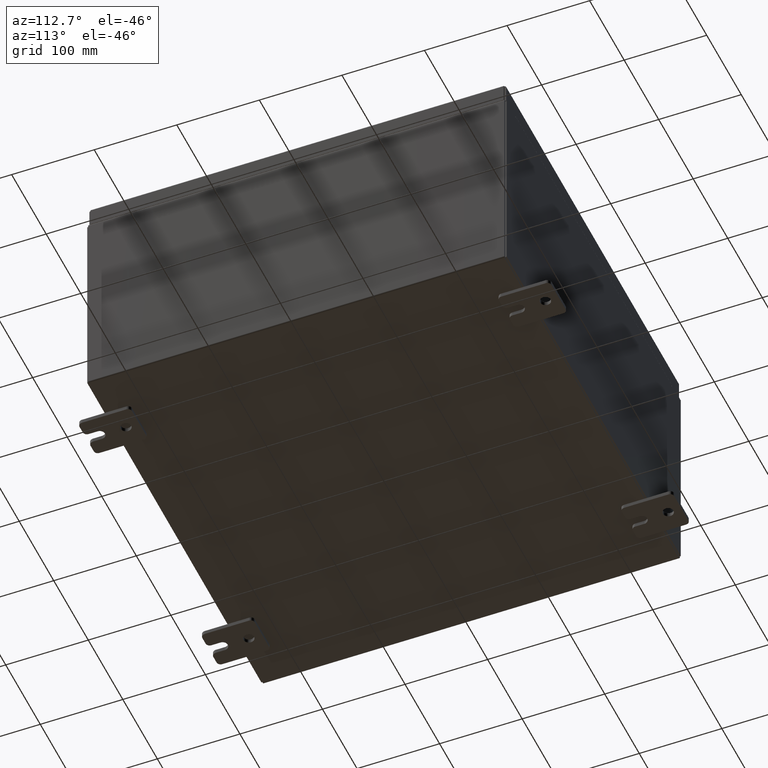
[diagram: clean part render]
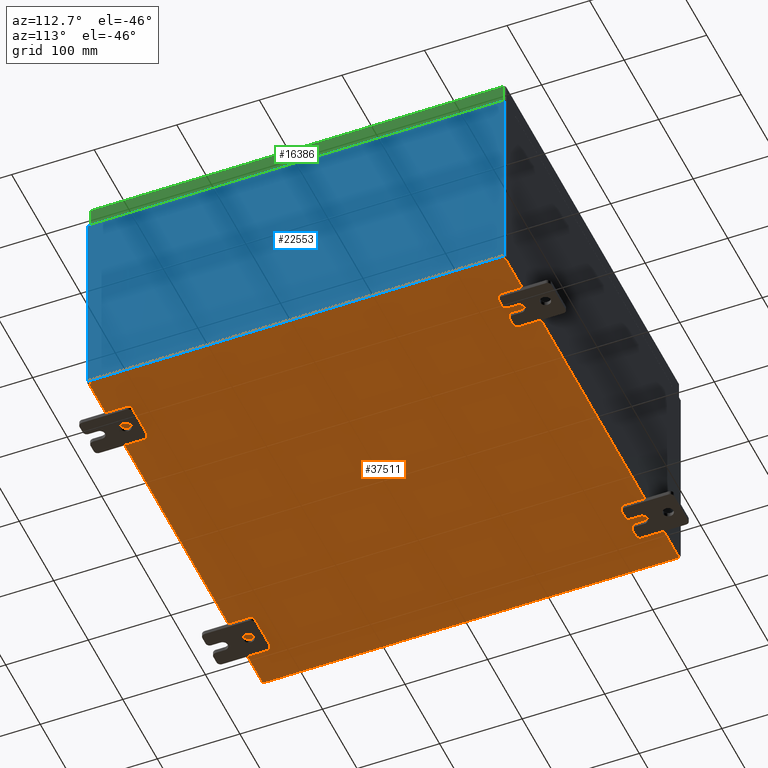
[diagram: same view with three faces highlighted in distinct colors, each labeled with its STEP entity id]
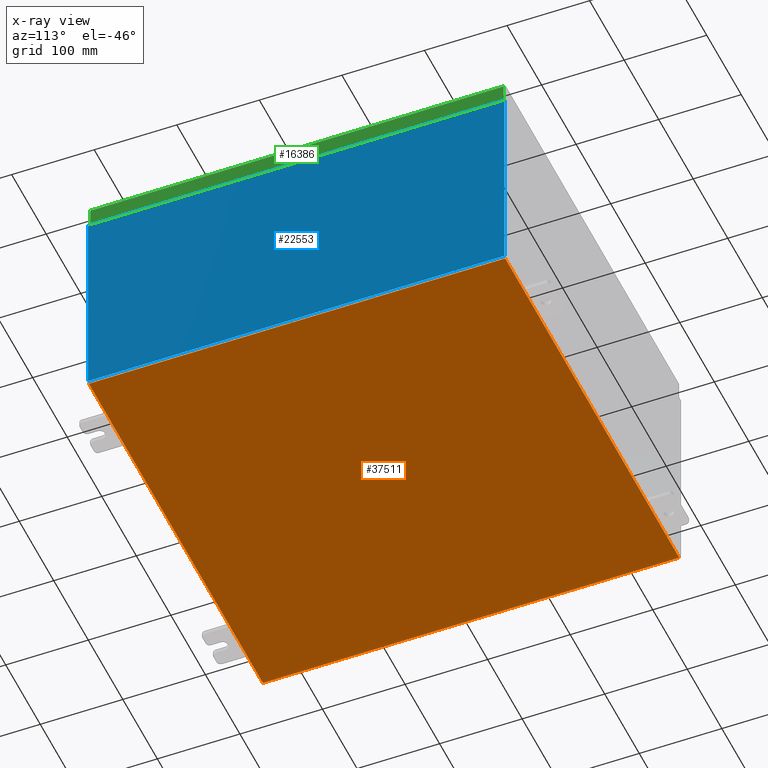
[diagram: x-ray of the same camera — body ghosted, the three highlighted faces saturated]
A machine part, auxiliary view with three faces highlighted in distinct colors.
The next image is the same camera in x-ray (body ghosted, the three faces saturated) — at least one of them is partly hidden behind the body in this view.
Their STEP definitions:

[orange] entity #37511 — the highlighted planar face has unit normal (0, 0, -1).
#795 = ORIENTED_EDGE ( 'NONE', *, *, #26957, .F. ) ;
#6529 = LINE ( 'NONE', #42956, #55595 ) ;
#7159 = ORIENTED_EDGE ( 'NONE', *, *, #29841, .T. ) ;
#9420 = CARTESIAN_POINT ( 'NONE',  ( -10.00000000000000000, -9.925299999999998200, -0.07470000000000000300 ) ) ;
#10804 = VERTEX_POINT ( 'NONE', #46163 ) ;
#12954 = LINE ( 'NONE', #47720, #25949 ) ;
#13771 = VECTOR ( 'NONE', #14333, 39.37007874015748100 ) ;
#14333 = DIRECTION ( 'NONE',  ( 1.000000000000000000, 0.0000000000000000000, 0.0000000000000000000 ) ) ;
#18795 = AXIS2_PLACEMENT_3D ( 'NONE', #41668, #56690, #27273 ) ;
#23276 = CARTESIAN_POINT ( 'NONE',  ( -10.00000000000000000, 9.925300000000001800, -0.07470000000000000300 ) ) ;
#25949 = VECTOR ( 'NONE', #27925, 39.37007874015748100 ) ;
#26957 = EDGE_CURVE ( 'NONE', #10804, #31960, #61350, .T. ) ;
#27273 = DIRECTION ( 'NONE',  ( -1.000000000000000000, 0.0000000000000000000, -0.0000000000000000000 ) ) ;
#27925 = DIRECTION ( 'NONE',  ( -0.0000000000000000000, -1.000000000000000000, -0.0000000000000000000 ) ) ;
#28202 = DIRECTION ( 'NONE',  ( -1.000000000000000000, -0.0000000000000000000, -0.0000000000000000000 ) ) ;
#28210 = ORIENTED_EDGE ( 'NONE', *, *, #35205, .T. ) ;
#29841 = EDGE_CURVE ( 'NONE', #40425, #31960, #12954, .T. ) ;
#31960 = VERTEX_POINT ( 'NONE', #61439 ) ;
#35205 = EDGE_CURVE ( 'NONE', #10804, #54665, #6529, .T. ) ;
#36255 = FACE_OUTER_BOUND ( 'NONE', #58512, .T. ) ;
#37511 = ADVANCED_FACE ( 'NONE', ( #36255 ), #51762, .T. ) ;
#37986 = DIRECTION ( 'NONE',  ( -0.0000000000000000000, 1.000000000000000000, -0.0000000000000000000 ) ) ;
#40425 = VERTEX_POINT ( 'NONE', #48073 ) ;
#41668 = CARTESIAN_POINT ( 'NONE',  ( 0.0000000000000000000, 0.0000000000000000000, -0.07470000000000000300 ) ) ;
#42329 = ORIENTED_EDGE ( 'NONE', *, *, #60268, .F. ) ;
#42956 = CARTESIAN_POINT ( 'NONE',  ( -9.912300000000000100, -9.925299999999998200, -0.07469999999999994700 ) ) ;
#46163 = CARTESIAN_POINT ( 'NONE',  ( -9.912300000000000100, -9.925299999999996500, -0.07469999999999994700 ) ) ;
#47720 = CARTESIAN_POINT ( 'NONE',  ( 9.912300000000000100, 9.925300000000001800, -0.07469999999999994700 ) ) ;
#48073 = CARTESIAN_POINT ( 'NONE',  ( 9.912300000000000100, 9.925299999999998200, -0.07469999999999994700 ) ) ;
#50902 = VECTOR ( 'NONE', #28202, 39.37007874015748100 ) ;
#51738 = CARTESIAN_POINT ( 'NONE',  ( -9.912300000000000100, 9.925300000000001800, -0.07470000000000000300 ) ) ;
#51762 = PLANE ( 'NONE',  #18795 ) ;
#52447 = LINE ( 'NONE', #23276, #50902 ) ;
#54665 = VERTEX_POINT ( 'NONE', #51738 ) ;
#55595 = VECTOR ( 'NONE', #37986, 39.37007874015748100 ) ;
#56690 = DIRECTION ( 'NONE',  ( 0.0000000000000000000, 0.0000000000000000000, -1.000000000000000000 ) ) ;
#58512 = EDGE_LOOP ( 'NONE', ( #795, #28210, #42329, #7159 ) ) ;
#60268 = EDGE_CURVE ( 'NONE', #40425, #54665, #52447, .T. ) ;
#61350 = LINE ( 'NONE', #9420, #13771 ) ;
#61439 = CARTESIAN_POINT ( 'NONE',  ( 9.912300000000000100, -9.925299999999998200, -0.07470000000000000300 ) ) ;

[blue] entity #22553 — the highlighted planar face has unit normal (-1, 0, 0).
#2869 = VERTEX_POINT ( 'NONE', #7932 ) ;
#3292 = VECTOR ( 'NONE', #28039, 39.37007874015748100 ) ;
#6965 = ORIENTED_EDGE ( 'NONE', *, *, #35541, .T. ) ;
#7932 = CARTESIAN_POINT ( 'NONE',  ( 10.00000000000000000, -9.925299999999998200, 0.01299999999999984300 ) ) ;
#8483 = VERTEX_POINT ( 'NONE', #22563 ) ;
#8607 = DIRECTION ( 'NONE',  ( -0.0000000000000000000, -1.000000000000000000, -0.0000000000000000000 ) ) ;
#11849 = LINE ( 'NONE', #20155, #36381 ) ;
#15572 = CARTESIAN_POINT ( 'NONE',  ( 10.00000000000000000, 0.0000000000000000000, -3.549164226462045900E-014 ) ) ;
#16187 = ORIENTED_EDGE ( 'NONE', *, *, #31739, .F. ) ;
#18971 = LINE ( 'NONE', #25829, #45078 ) ;
#19341 = ORIENTED_EDGE ( 'NONE', *, *, #38269, .T. ) ;
#20155 = CARTESIAN_POINT ( 'NONE',  ( 10.00000000000000000, 9.925300000000001800, -3.330616386968905300E-014 ) ) ;
#20884 = DIRECTION ( 'NONE',  ( -1.000000000000000000, 0.0000000000000000000, 3.523082860860887800E-015 ) ) ;
#21690 = CARTESIAN_POINT ( 'NONE',  ( 10.00000000000000000, 9.925299999999998200, 0.01299999999999984700 ) ) ;
#22553 = ADVANCED_FACE ( 'NONE', ( #24141 ), #45175, .F. ) ;
#22563 = CARTESIAN_POINT ( 'NONE',  ( 10.00000000000003600, 9.925299999999996500, 9.837599999999998300 ) ) ;
#24141 = FACE_OUTER_BOUND ( 'NONE', #54391, .T. ) ;
#24883 = DIRECTION ( 'NONE',  ( 3.523082860860888200E-015, -2.201926788038055100E-016, 1.000000000000000000 ) ) ;
#25829 = CARTESIAN_POINT ( 'NONE',  ( 10.00000000000000000, -9.925299999999998200, 0.01299999999999984700 ) ) ;
#26808 = VECTOR ( 'NONE', #8607, 39.37007874015748100 ) ;
#26840 = EDGE_CURVE ( 'NONE', #8483, #56255, #52945, .T. ) ;
#28039 = DIRECTION ( 'NONE',  ( -3.523082860860888200E-015, 0.0000000000000000000, -1.000000000000000000 ) ) ;
#31739 = EDGE_CURVE ( 'NONE', #36935, #2869, #18971, .T. ) ;
#35541 = EDGE_CURVE ( 'NONE', #36935, #8483, #11849, .T. ) ;
#36381 = VECTOR ( 'NONE', #24883, 39.37007874015748100 ) ;
#36935 = VERTEX_POINT ( 'NONE', #21690 ) ;
#38269 = EDGE_CURVE ( 'NONE', #56255, #2869, #53890, .T. ) ;
#39875 = ORIENTED_EDGE ( 'NONE', *, *, #26840, .T. ) ;
#42892 = CARTESIAN_POINT ( 'NONE',  ( 10.00000000000003600, 9.925299999999998200, 9.837599999999998300 ) ) ;
#45078 = VECTOR ( 'NONE', #60160, 39.37007874015748100 ) ;
#45175 = PLANE ( 'NONE',  #62592 ) ;
#51942 = CARTESIAN_POINT ( 'NONE',  ( 10.00000000000003600, -9.925299999999998200, 9.837599999999998300 ) ) ;
#52945 = LINE ( 'NONE', #42892, #26808 ) ;
#53890 = LINE ( 'NONE', #57462, #3292 ) ;
#54391 = EDGE_LOOP ( 'NONE', ( #39875, #19341, #16187, #6965 ) ) ;
#55243 = DIRECTION ( 'NONE',  ( 3.523082860860887800E-015, 0.0000000000000000000, 1.000000000000000000 ) ) ;
#56255 = VERTEX_POINT ( 'NONE', #51942 ) ;
#57462 = CARTESIAN_POINT ( 'NONE',  ( 10.00000000000000000, -9.925299999999998200, -3.549164226462045900E-014 ) ) ;
#60160 = DIRECTION ( 'NONE',  ( -0.0000000000000000000, -1.000000000000000000, -0.0000000000000000000 ) ) ;
#62592 = AXIS2_PLACEMENT_3D ( 'NONE', #15572, #20884, #55243 ) ;

[green] entity #16386 — the highlighted planar face has unit normal (1, 0, 0).
#1029 = VECTOR ( 'NONE', #43459, 39.37007874015748100 ) ;
#1765 = DIRECTION ( 'NONE',  ( 0.0000000000000000000, -1.000000000000000000, 0.0000000000000000000 ) ) ;
#3096 = EDGE_LOOP ( 'NONE', ( #21451, #13768, #10732, #51526 ) ) ;
#3791 = LINE ( 'NONE', #31058, #42916 ) ;
#8256 = VERTEX_POINT ( 'NONE', #15332 ) ;
#9775 = DIRECTION ( 'NONE',  ( 1.000000000000000000, 0.0000000000000000000, 2.532419924601866100E-015 ) ) ;
#10732 = ORIENTED_EDGE ( 'NONE', *, *, #31534, .T. ) ;
#13768 = ORIENTED_EDGE ( 'NONE', *, *, #27604, .F. ) ;
#15332 = CARTESIAN_POINT ( 'NONE',  ( 9.937499999999998200, 9.848657864376269400, -0.08770000000000008300 ) ) ;
#16386 = ADVANCED_FACE ( 'NONE', ( #45284 ), #39098, .T. ) ;
#18484 = EDGE_CURVE ( 'NONE', #43240, #22230, #28981, .T. ) ;
#18918 = DIRECTION ( 'NONE',  ( -2.532419924601866100E-015, -6.982962677686267500E-015, 1.000000000000000000 ) ) ;
#20445 = CARTESIAN_POINT ( 'NONE',  ( 9.937499999999998200, -9.848657864376271200, -0.08770000000000008300 ) ) ;
#21451 = ORIENTED_EDGE ( 'NONE', *, *, #18484, .F. ) ;
#22230 = VERTEX_POINT ( 'NONE', #20445 ) ;
#24790 = CARTESIAN_POINT ( 'NONE',  ( 9.937499999999998200, 9.848657864376265900, 9.419954694898343600E-014 ) ) ;
#25430 = CARTESIAN_POINT ( 'NONE',  ( 9.937500000000000000, 9.848657864376273000, -0.9376999999999997600 ) ) ;
#26206 = AXIS2_PLACEMENT_3D ( 'NONE', #63575, #9775, #44066 ) ;
#27604 = EDGE_CURVE ( 'NONE', #50372, #43240, #3791, .T. ) ;
#28524 = CARTESIAN_POINT ( 'NONE',  ( 9.937499999999998200, -9.848657864376271200, -0.07469999999999980800 ) ) ;
#28981 = LINE ( 'NONE', #28524, #53612 ) ;
#29700 = DIRECTION ( 'NONE',  ( -2.532419924601866100E-015, -6.982962677686267500E-015, 1.000000000000000000 ) ) ;
#31058 = CARTESIAN_POINT ( 'NONE',  ( 9.937500000000000000, -9.937500000000001800, -0.9376999999999997600 ) ) ;
#31534 = EDGE_CURVE ( 'NONE', #50372, #8256, #51253, .T. ) ;
#38475 = CARTESIAN_POINT ( 'NONE',  ( 9.937499999999998200, 0.0000000000000000000, -0.08770000000000008300 ) ) ;
#39098 = PLANE ( 'NONE',  #26206 ) ;
#40097 = LINE ( 'NONE', #38475, #1029 ) ;
#40153 = EDGE_CURVE ( 'NONE', #8256, #22230, #40097, .T. ) ;
#42916 = VECTOR ( 'NONE', #1765, 39.37007874015748100 ) ;
#43240 = VERTEX_POINT ( 'NONE', #54101 ) ;
#43459 = DIRECTION ( 'NONE',  ( 0.0000000000000000000, -1.000000000000000000, 0.0000000000000000000 ) ) ;
#44066 = DIRECTION ( 'NONE',  ( 2.532419924601866100E-015, 0.0000000000000000000, -1.000000000000000000 ) ) ;
#45284 = FACE_OUTER_BOUND ( 'NONE', #3096, .T. ) ;
#48173 = VECTOR ( 'NONE', #29700, 39.37007874015748100 ) ;
#50372 = VERTEX_POINT ( 'NONE', #25430 ) ;
#51253 = LINE ( 'NONE', #24790, #48173 ) ;
#51526 = ORIENTED_EDGE ( 'NONE', *, *, #40153, .T. ) ;
#53612 = VECTOR ( 'NONE', #18918, 39.37007874015748100 ) ;
#54101 = CARTESIAN_POINT ( 'NONE',  ( 9.937500000000000000, -9.848657864376264100, -0.9376999999999997600 ) ) ;
#63575 = CARTESIAN_POINT ( 'NONE',  ( 9.937499999999998200, 0.0000000000000000000, 2.542673665674262200E-014 ) ) ;